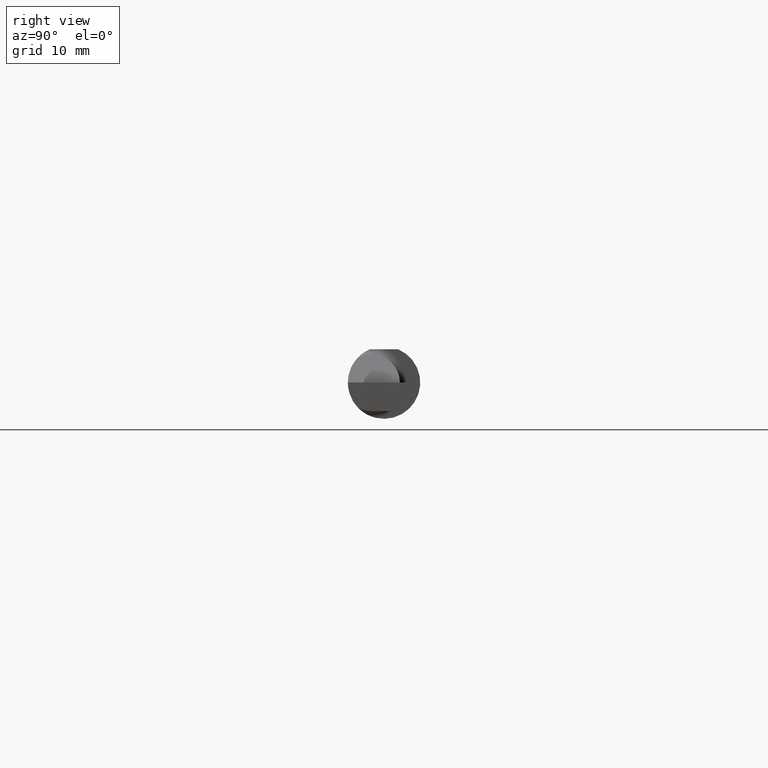
[diagram: clean part render]
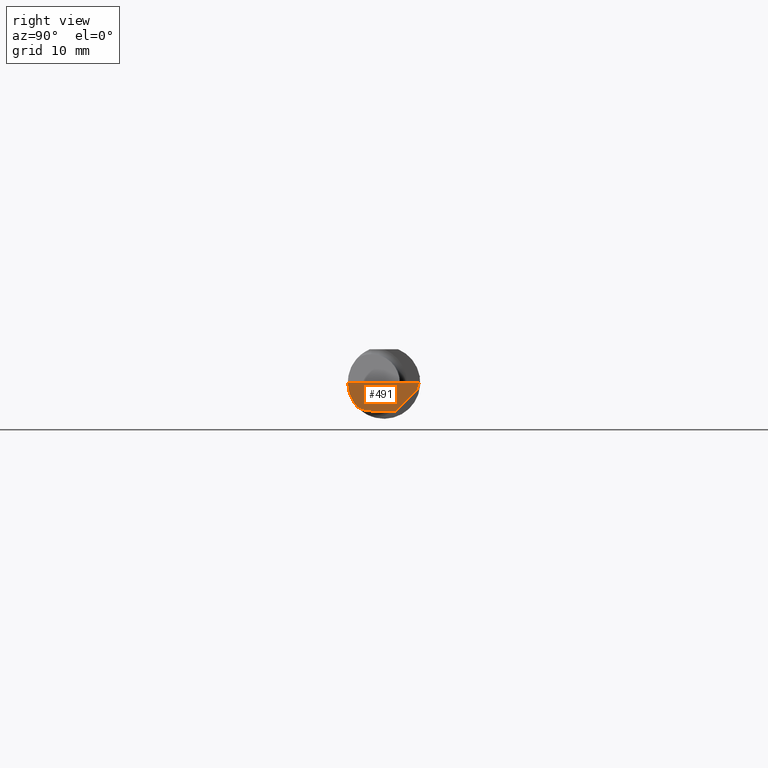
[diagram: same view with one face highlighted and labeled with its STEP entity id]
A machine part, right view. The second image highlights one B-rep face of the part: STEP entity #491.
In plain terms, the highlighted planar face has unit normal (-0.9995, 0.0174, 0.0262).
Its self-contained STEP definition (entity closure, byte-faithful):
#4 = CARTESIAN_POINT ( 'NONE',  ( 2.496652745773396020, 0.07741163850316090667, -0.09800000000000001765 ) ) ;
#5 = VECTOR ( 'NONE', #757, 39.37007874015748854 ) ;
#50 = VECTOR ( 'NONE', #300, 39.37007874015748854 ) ;
#55 = CARTESIAN_POINT ( 'NONE',  ( 2.493072779947982820, -0.1248043149033065402, -0.09996577117162359916 ) ) ;
#60 = CARTESIAN_POINT ( 'NONE',  ( 2.494380489674781209, -0.1999019447116721915, 6.881915332554903690E-19 ) ) ;
#62 = CARTESIAN_POINT ( 'NONE',  ( 2.500000000000000444, 0.1221499999999999808, 1.947508823608312588E-17 ) ) ;
#67 =( BOUNDED_CURVE ( )  B_SPLINE_CURVE ( 3, ( #739, #429, #369, #189 ),
 .UNSPECIFIED., .F., .F. ) 
 B_SPLINE_CURVE_WITH_KNOTS ( ( 4, 4 ),
 ( 0.09562308769844128642, 0.5877155292609013149 ),
 .UNSPECIFIED. ) 
 CURVE ( )  GEOMETRIC_REPRESENTATION_ITEM ( )  RATIONAL_B_SPLINE_CURVE ( ( 1.000000000000000000, 0.9799220177372778284, 0.9799220177372778284, 1.000000000000000000 ) ) 
 REPRESENTATION_ITEM ( '' )  );
#71 = ORIENTED_EDGE ( 'NONE', *, *, #202, .F. ) ;
#89 = EDGE_CURVE ( 'NONE', #559, #425, #421, .T. ) ;
#104 = DIRECTION ( 'NONE',  ( -0.03084274406794521375, -0.7067703747110382073, -0.7067703747110356538 ) ) ;
#105 = ORIENTED_EDGE ( 'NONE', *, *, #89, .F. ) ;
#116 = LINE ( 'NONE', #55, #634 ) ;
#128 = VERTEX_POINT ( 'NONE', #635 ) ;
#129 = CARTESIAN_POINT ( 'NONE',  ( 2.494033449660867152, -0.09015216647662482874, -0.08637192471845768493 ) ) ;
#189 = CARTESIAN_POINT ( 'NONE',  ( 2.494536841675280670, -0.04385000000000003478, -0.09799999999999998990 ) ) ;
#191 = ORIENTED_EDGE ( 'NONE', *, *, #552, .F. ) ;
#202 = EDGE_CURVE ( 'NONE', #425, #448, #639, .T. ) ;
#208 = CARTESIAN_POINT ( 'NONE',  ( 2.499227245409318954, 0.1138861372810479888, -0.02400000000000000050 ) ) ;
#234 = LINE ( 'NONE', #484, #540 ) ;
#244 = VERTEX_POINT ( 'NONE', #663 ) ;
#300 = DIRECTION ( 'NONE',  ( 0.01744642479411464761, 0.9998477995484629233, -2.135106780035675284E-18 ) ) ;
#322 = ORIENTED_EDGE ( 'NONE', *, *, #760, .T. ) ;
#331 = CARTESIAN_POINT ( 'NONE',  ( 2.494256244271084721, -0.1126860773865890480, -0.06285177167860772629 ) ) ;
#339 = EDGE_LOOP ( 'NONE', ( #322, #444, #462, #71, #105, #191, #442 ) ) ;
#369 = CARTESIAN_POINT ( 'NONE',  ( 2.494253479596434175, -0.06008937020638530080, -0.09800000000000001765 ) ) ;
#381 = VECTOR ( 'NONE', #726, 39.37007874015748854 ) ;
#404 = CARTESIAN_POINT ( 'NONE',  ( 2.495690077103728921, -0.1248499999950965084, 1.733801157256528502E-17 ) ) ;
#421 = LINE ( 'NONE', #60, #50 ) ;
#425 = VERTEX_POINT ( 'NONE', #62 ) ;
#429 = CARTESIAN_POINT ( 'NONE',  ( 2.494082244196984099, -0.07583965973232818791, -0.09404455760388209795 ) ) ;
#440 = EDGE_CURVE ( 'NONE', #448, #244, #234, .T. ) ;
#442 = ORIENTED_EDGE ( 'NONE', *, *, #478, .F. ) ;
#444 = ORIENTED_EDGE ( 'NONE', *, *, #492, .F. ) ;
#448 = VERTEX_POINT ( 'NONE', #208 ) ;
#462 = ORIENTED_EDGE ( 'NONE', *, *, #440, .F. ) ;
#478 = EDGE_CURVE ( 'NONE', #689, #768, #533, .T. ) ;
#484 = CARTESIAN_POINT ( 'NONE',  ( 2.499132853025171297, 0.1117231085775382687, -0.02616302870350971019 ) ) ;
#487 = DIRECTION ( 'NONE',  ( 0.02617296143184116158, -0.0004568507411563388484, 0.9996573249755575929 ) ) ;
#491 = ADVANCED_FACE ( 'NONE', ( #772 ), #546, .F. ) ;
#492 = EDGE_CURVE ( 'NONE', #244, #128, #548, .T. ) ;
#512 = CARTESIAN_POINT ( 'NONE',  ( 2.499907402661638578, 0.1211597610527450630, -0.002875862722116008779 ) ) ;
#533 =( BOUNDED_CURVE ( )  B_SPLINE_CURVE ( 3, ( #586, #331, #767, #553 ),
 .UNSPECIFIED., .F., .F. ) 
 B_SPLINE_CURVE_WITH_KNOTS ( ( 4, 4 ),
 ( 0.2190942387645155864, 0.9826237902196512941 ),
 .UNSPECIFIED. ) 
 CURVE ( )  GEOMETRIC_REPRESENTATION_ITEM ( )  RATIONAL_B_SPLINE_CURVE ( ( 1.000000000000000000, 0.9520057322288819623, 0.9520057322288819623, 1.000000000000000000 ) ) 
 REPRESENTATION_ITEM ( '' )  );
#535 = DIRECTION ( 'NONE',  ( 0.02618093032612054533, 0.000000000000000000, 0.9996572206948034500 ) ) ;
#540 = VECTOR ( 'NONE', #104, 39.37007874015748854 ) ;
#546 = PLANE ( 'NONE',  #653 ) ;
#548 = LINE ( 'NONE', #4, #381 ) ;
#552 = EDGE_CURVE ( 'NONE', #768, #559, #116, .T. ) ;
#553 = CARTESIAN_POINT ( 'NONE',  ( 2.495688583004118666, -0.1248499869621840785, -5.705736120969982501E-05 ) ) ;
#559 = VERTEX_POINT ( 'NONE', #404 ) ;
#586 = CARTESIAN_POINT ( 'NONE',  ( 2.494033449660867152, -0.09015216647662482874, -0.08637192471845768493 ) ) ;
#597 = CARTESIAN_POINT ( 'NONE',  ( 2.497382703856816377, 0.1221956850741156286, -0.09996573249755572044 ) ) ;
#634 = VECTOR ( 'NONE', #487, 39.37007874015748854 ) ;
#635 = CARTESIAN_POINT ( 'NONE',  ( 2.494536841675280670, -0.04385000000000003478, -0.09799999999999998990 ) ) ;
#639 = LINE ( 'NONE', #512, #5 ) ;
#653 = AXIS2_PLACEMENT_3D ( 'NONE', #597, #721, #535 ) ;
#663 = CARTESIAN_POINT ( 'NONE',  ( 2.495997960279815686, 0.03988613728104775658, -0.09799999999999996214 ) ) ;
#689 = VERTEX_POINT ( 'NONE', #129 ) ;
#721 = DIRECTION ( 'NONE',  ( -0.9995051766793262571, 0.01744044634007211117, 0.02617694830739122208 ) ) ;
#726 = DIRECTION ( 'NONE',  ( -0.01744642479411464067, -0.9998477995484629233, 2.816882764651547739E-16 ) ) ;
#739 = CARTESIAN_POINT ( 'NONE',  ( 2.494033449660867152, -0.09015216647662482874, -0.08637192471845768493 ) ) ;
#744 = CARTESIAN_POINT ( 'NONE',  ( 2.495688583004118666, -0.1248499869621840785, -5.705736120969982501E-05 ) ) ;
#757 = DIRECTION ( 'NONE',  ( -0.03042981077198583101, -0.3254173858243484818, -0.9450807116958995779 ) ) ;
#760 = EDGE_CURVE ( 'NONE', #689, #128, #67, .T. ) ;
#767 = CARTESIAN_POINT ( 'NONE',  ( 2.494835769263151537, -0.1248351010429638308, -0.03262966116142157480 ) ) ;
#768 = VERTEX_POINT ( 'NONE', #744 ) ;
#772 = FACE_OUTER_BOUND ( 'NONE', #339, .T. ) ;